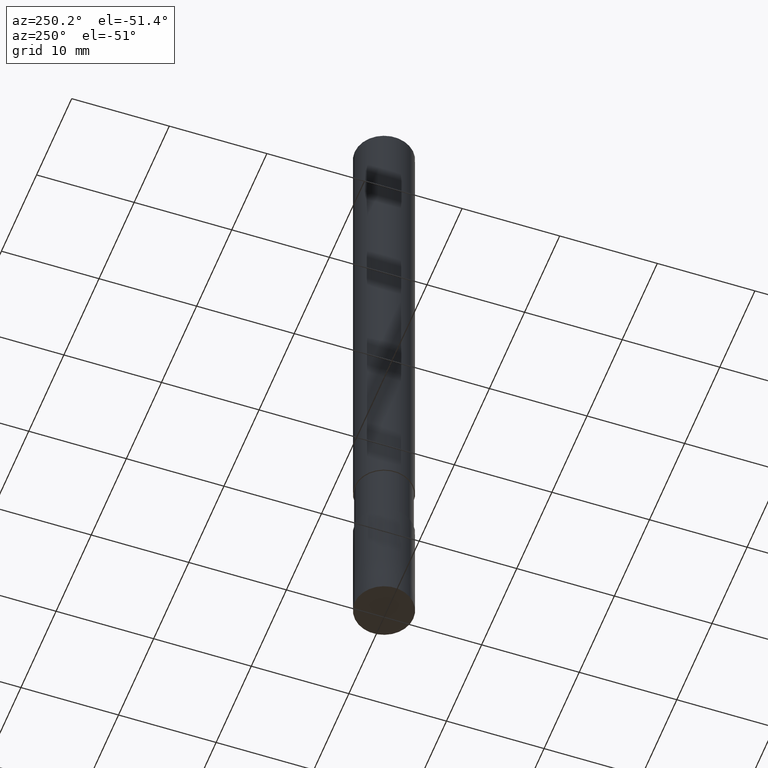
[diagram: clean part render]
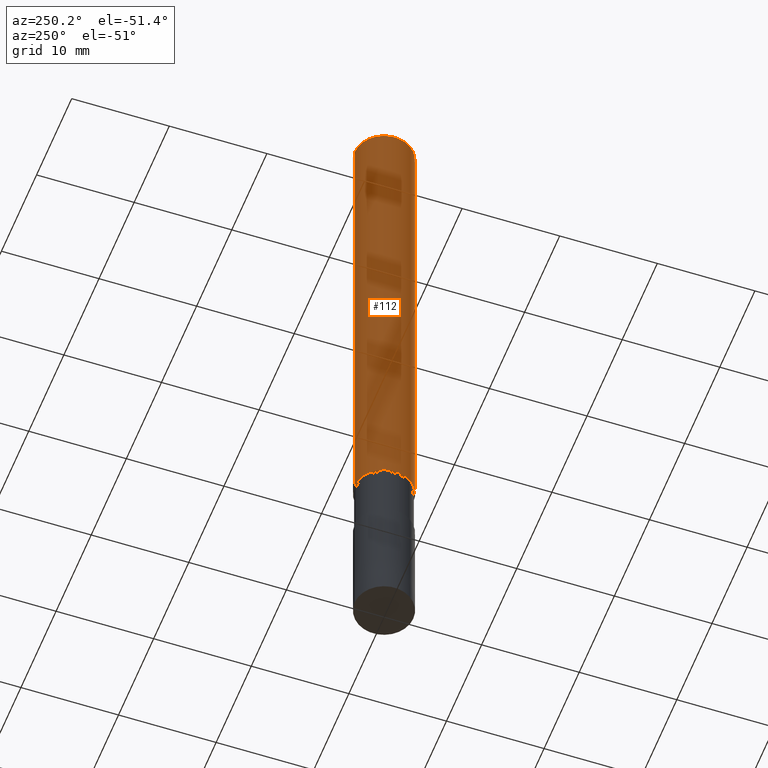
[diagram: same view with one face highlighted and labeled with its STEP entity id]
A machine part, auxiliary view. The second image highlights one B-rep face of the part: STEP entity #112.
In plain terms, the highlighted cylindrical surface (edge-blend (fillet) strip) has radius 3 mm, axis along (-0, -0, 1).
Its self-contained STEP definition (entity closure, byte-faithful):
#94=EDGE_CURVE('',#118,#140,#218,.T.);
#110=VERTEX_POINT('',#236);
#112=ADVANCED_FACE('',(#238),#239,.T.);
#118=VERTEX_POINT('',#245);
#120=EDGE_CURVE('',#118,#134,#247,.T.);
#124=EDGE_CURVE('',#134,#110,#251,.T.);
#134=VERTEX_POINT('',#262);
#140=VERTEX_POINT('',#268);
#148=EDGE_CURVE('',#110,#140,#277,.T.);
#218=CIRCLE('',#348,3.0);
#236=CARTESIAN_POINT('',(0.0,3.0,-0.399999999999999));
#238=FACE_OUTER_BOUND('',#371,.T.);
#239=CYLINDRICAL_SURFACE('',#372,3.0);
#245=CARTESIAN_POINT('',(3.67381906146713E-016,-3.0,-52.0));
#247=LINE('',#384,#385);
#251=CIRCLE('',#390,3.0);
#262=CARTESIAN_POINT('',(3.67381906146713E-016,-3.0,-0.399999999999999));
#268=CARTESIAN_POINT('',(0.0,3.0,-52.0));
#277=LINE('',#423,#424);
#348=AXIS2_PLACEMENT_3D('',#504,#505,#506);
#371=EDGE_LOOP('',(#531,#532,#533,#534));
#372=AXIS2_PLACEMENT_3D('',#535,#536,#537);
#384=CARTESIAN_POINT('',(3.67381906146713E-016,-3.0,-26.2));
#385=VECTOR('',#542,1.0);
#390=AXIS2_PLACEMENT_3D('',#543,#544,#545);
#423=CARTESIAN_POINT('',(-3.67381906146713E-016,3.0,-26.2));
#424=VECTOR('',#570,1.0);
#504=CARTESIAN_POINT('',(0.0,0.0,-52.0));
#505=DIRECTION('',(0.0,0.0,-1.0));
#506=DIRECTION('',(0.0,1.0,0.0));
#531=ORIENTED_EDGE('',*,*,#148,.T.);
#532=ORIENTED_EDGE('',*,*,#94,.F.);
#533=ORIENTED_EDGE('',*,*,#120,.T.);
#534=ORIENTED_EDGE('',*,*,#124,.T.);
#535=CARTESIAN_POINT('',(0.0,0.0,-26.2));
#536=DIRECTION('',(-0.0,-0.0,1.0));
#537=DIRECTION('',(0.0,1.0,0.0));
#542=DIRECTION('',(-0.0,-0.0,1.0));
#543=CARTESIAN_POINT('',(0.0,0.0,-0.399999999999999));
#544=DIRECTION('',(0.0,0.0,-1.0));
#545=DIRECTION('',(0.0,1.0,0.0));
#570=DIRECTION('',(0.0,0.0,-1.0));